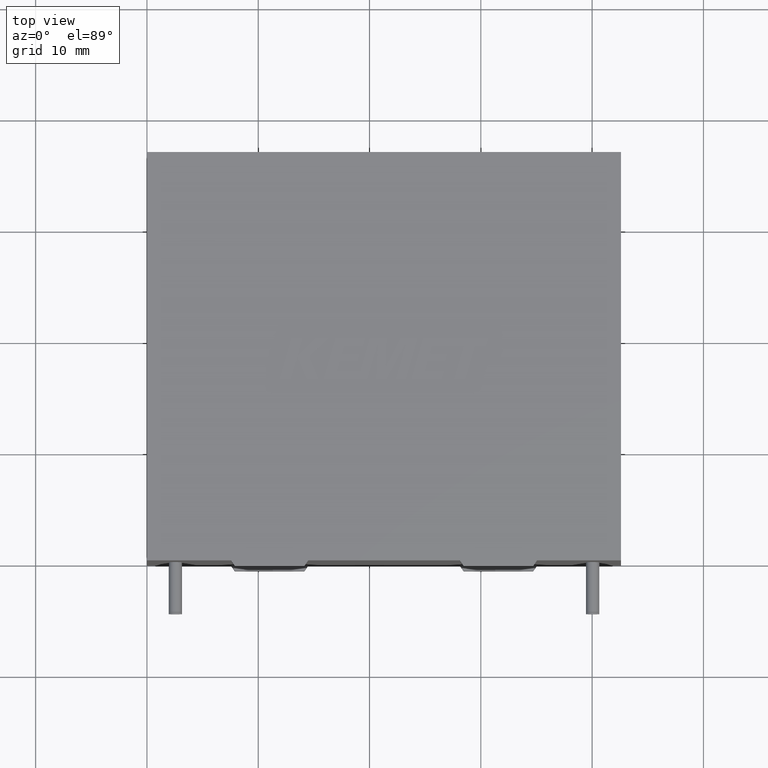
[diagram: clean part render]
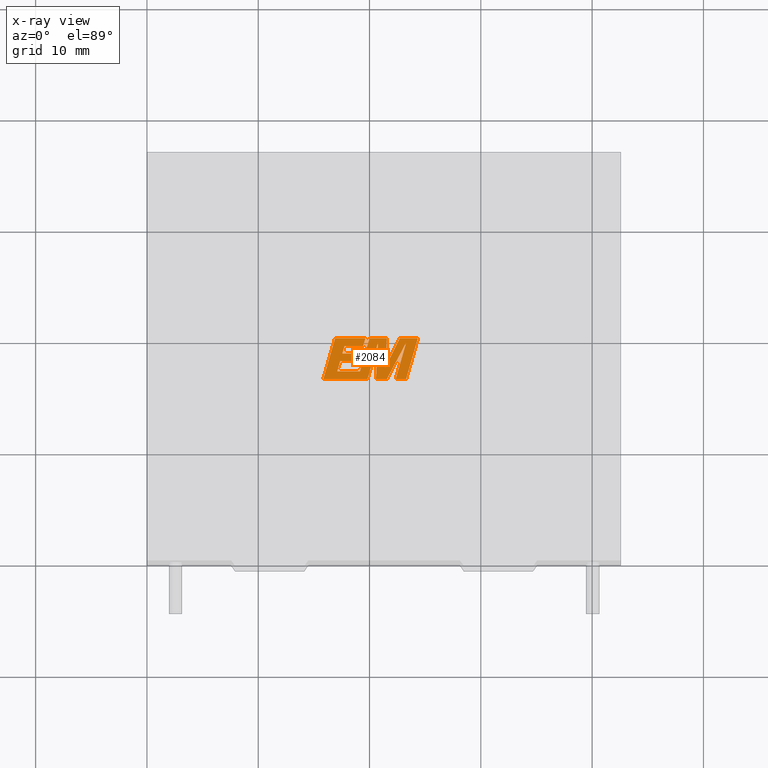
[diagram: x-ray — body ghosted, one internal face saturated and labeled with its STEP entity id]
A machine part, top view, then the same camera in x-ray: the body is ghosted and one INTERNAL B-rep face — a face not visible from any outside direction — is saturated and labeled: STEP entity #2084.
In plain terms, the highlighted planar face has unit normal (0, 0, -1).
Its self-contained STEP definition (entity closure, byte-faithful):
#7 = ORIENTED_EDGE ( 'NONE', *, *, #1679, .F. ) ;
#8 = VECTOR ( 'NONE', #347, 1000.000000000000200 ) ;
#43 = VECTOR ( 'NONE', #2289, 1000.000000000000000 ) ;
#48 = VERTEX_POINT ( 'NONE', #169 ) ;
#83 = VECTOR ( 'NONE', #2873, 1000.000000000000100 ) ;
#117 = LINE ( 'NONE', #2500, #1298 ) ;
#130 = EDGE_CURVE ( 'NONE', #1488, #1294, #1864, .T. ) ;
#162 = LINE ( 'NONE', #2827, #2684 ) ;
#169 = CARTESIAN_POINT ( 'NONE',  ( 19.99668704401929300, 19.96864435772087300, 28.39999999999999900 ) ) ;
#176 = EDGE_CURVE ( 'NONE', #2490, #2208, #1978, .T. ) ;
#217 = ORIENTED_EDGE ( 'NONE', *, *, #3160, .F. ) ;
#275 = CARTESIAN_POINT ( 'NONE',  ( 21.42351629502518400, 17.33744800757221700, 28.39999999999999900 ) ) ;
#277 = CARTESIAN_POINT ( 'NONE',  ( 16.90843675577583100, 19.96864435772087300, 28.39999999999999900 ) ) ;
#291 = DIRECTION ( 'NONE',  ( 0.0000000000000000000, 0.0000000000000000000, -1.000000000000000000 ) ) ;
#301 = CARTESIAN_POINT ( 'NONE',  ( 18.93918044897039700, 17.90169557702803300, 28.39999999999999900 ) ) ;
#321 = DIRECTION ( 'NONE',  ( -0.2762517575166419400, -0.9610853065513832400, 0.0000000000000000000 ) ) ;
#342 = EDGE_CURVE ( 'NONE', #2457, #915, #162, .T. ) ;
#347 = DIRECTION ( 'NONE',  ( -0.2760118818968562100, -0.9611542233438689100, 0.0000000000000000000 ) ) ;
#358 = LINE ( 'NONE', #652, #2309 ) ;
#370 = VERTEX_POINT ( 'NONE', #1778 ) ;
#408 = CARTESIAN_POINT ( 'NONE',  ( 18.93918044897039700, 17.90169557702803300, 28.39999999999999900 ) ) ;
#416 = VERTEX_POINT ( 'NONE', #277 ) ;
#423 = CARTESIAN_POINT ( 'NONE',  ( 17.55286043641822500, 18.58255951585596900, 28.39999999999999900 ) ) ;
#444 = ORIENTED_EDGE ( 'NONE', *, *, #506, .F. ) ;
#446 = ORIENTED_EDGE ( 'NONE', *, *, #1894, .F. ) ;
#456 = ORIENTED_EDGE ( 'NONE', *, *, #1695, .F. ) ;
#493 = DIRECTION ( 'NONE',  ( 1.000000000000000000, 0.0000000000000000000, 0.0000000000000000000 ) ) ;
#502 = VERTEX_POINT ( 'NONE', #582 ) ;
#506 = EDGE_CURVE ( 'NONE', #502, #2266, #1732, .T. ) ;
#509 = VECTOR ( 'NONE', #493, 1000.000000000000000 ) ;
#520 = VERTEX_POINT ( 'NONE', #2094 ) ;
#549 = CARTESIAN_POINT ( 'NONE',  ( 22.72850358042765600, 19.96864435772087300, 28.39999999999999900 ) ) ;
#552 = LINE ( 'NONE', #618, #1734 ) ;
#554 = CARTESIAN_POINT ( 'NONE',  ( 22.34904344926998800, 16.28562499999988600, 28.39999999999999900 ) ) ;
#557 = VERTEX_POINT ( 'NONE', #1127 ) ;
#566 = ORIENTED_EDGE ( 'NONE', *, *, #1502, .F. ) ;
#567 = LINE ( 'NONE', #2910, #8 ) ;
#582 = CARTESIAN_POINT ( 'NONE',  ( 17.35860944736875700, 17.90169557702803300, 28.39999999999999900 ) ) ;
#601 = ORIENTED_EDGE ( 'NONE', *, *, #1486, .F. ) ;
#618 = CARTESIAN_POINT ( 'NONE',  ( 17.55286043641822500, 18.58255951585596900, 28.39999999999999900 ) ) ;
#641 = LINE ( 'NONE', #2358, #1117 ) ;
#652 = CARTESIAN_POINT ( 'NONE',  ( 24.34385082149052700, 19.96864435772087300, 28.39999999999999900 ) ) ;
#654 = DIRECTION ( 'NONE',  ( -1.000000000000000000, 0.0000000000000000000, 0.0000000000000000000 ) ) ;
#699 = CARTESIAN_POINT ( 'NONE',  ( 16.90843675577583100, 19.96864435772087300, 28.39999999999999900 ) ) ;
#715 = VERTEX_POINT ( 'NONE', #1687 ) ;
#737 = ORIENTED_EDGE ( 'NONE', *, *, #2270, .F. ) ;
#741 = EDGE_CURVE ( 'NONE', #915, #48, #117, .T. ) ;
#773 = VECTOR ( 'NONE', #2916, 1000.000000000000000 ) ;
#827 = CARTESIAN_POINT ( 'NONE',  ( 19.99668704401929300, 19.96864435772087300, 28.39999999999999900 ) ) ;
#853 = VECTOR ( 'NONE', #2501, 1000.000000000000200 ) ;
#880 = CARTESIAN_POINT ( 'NONE',  ( 19.13945628708689700, 16.98632166693396100, 28.39999999999999900 ) ) ;
#915 = VERTEX_POINT ( 'NONE', #2854 ) ;
#919 = VECTOR ( 'NONE', #2352, 999.9999999999998900 ) ;
#930 = DIRECTION ( 'NONE',  ( -1.000000000000000000, 0.0000000000000000000, 0.0000000000000000000 ) ) ;
#974 = VECTOR ( 'NONE', #1861, 1000.000000000000000 ) ;
#1018 = CARTESIAN_POINT ( 'NONE',  ( 19.43021684743647300, 19.26760053406248800, 28.39999999999999900 ) ) ;
#1026 = VECTOR ( 'NONE', #2698, 1000.000000000000000 ) ;
#1036 = EDGE_CURVE ( 'NONE', #1294, #2490, #567, .T. ) ;
#1058 = CARTESIAN_POINT ( 'NONE',  ( 22.72850358042765600, 19.96864435772087300, 28.39999999999999900 ) ) ;
#1080 = EDGE_CURVE ( 'NONE', #715, #2866, #1359, .T. ) ;
#1091 = CARTESIAN_POINT ( 'NONE',  ( 20.75782257504268500, 19.56452032672960000, 28.39999999999999900 ) ) ;
#1113 = LINE ( 'NONE', #699, #43 ) ;
#1115 = CARTESIAN_POINT ( 'NONE',  ( -0.2046702566905634300, 0.4081393718311475700, 28.39999999999999100 ) ) ;
#1117 = VECTOR ( 'NONE', #3124, 1000.000000000000200 ) ;
#1122 = VERTEX_POINT ( 'NONE', #2931 ) ;
#1127 = CARTESIAN_POINT ( 'NONE',  ( 20.57403108235148500, 16.28562499999988200, 28.39999999999999900 ) ) ;
#1131 = LINE ( 'NONE', #2132, #773 ) ;
#1177 = CARTESIAN_POINT ( 'NONE',  ( 23.28495559953109500, 16.28562499999988600, 28.39999999999999900 ) ) ;
#1193 = ORIENTED_EDGE ( 'NONE', *, *, #3316, .F. ) ;
#1213 = CARTESIAN_POINT ( 'NONE',  ( 21.55589110578521400, 16.28562499999988200, 28.39999999999999900 ) ) ;
#1241 = DIRECTION ( 'NONE',  ( 0.2740217765954065500, 0.9617234872620595800, 0.0000000000000000000 ) ) ;
#1248 = CARTESIAN_POINT ( 'NONE',  ( 24.34385082149052700, 19.96864435772087300, 28.39999999999999900 ) ) ;
#1261 = CARTESIAN_POINT ( 'NONE',  ( 17.09779395475023000, 16.98632166693396100, 28.39999999999999900 ) ) ;
#1290 = ORIENTED_EDGE ( 'NONE', *, *, #1080, .F. ) ;
#1294 = VERTEX_POINT ( 'NONE', #2750 ) ;
#1298 = VECTOR ( 'NONE', #930, 1000.000000000000000 ) ;
#1357 = ORIENTED_EDGE ( 'NONE', *, *, #3112, .F. ) ;
#1359 = LINE ( 'NONE', #2180, #2493 ) ;
#1368 = CARTESIAN_POINT ( 'NONE',  ( 17.35860944736875700, 17.90169557702803300, 28.39999999999999900 ) ) ;
#1369 = CARTESIAN_POINT ( 'NONE',  ( 19.16078962521594800, 16.28562499999988200, 28.39999999999999900 ) ) ;
#1388 = CARTESIAN_POINT ( 'NONE',  ( 20.75782257504268500, 19.56452032672960000, 28.39999999999999900 ) ) ;
#1424 = LINE ( 'NONE', #2339, #2517 ) ;
#1470 = VECTOR ( 'NONE', #2784, 1000.000000000000000 ) ;
#1482 = VECTOR ( 'NONE', #2970, 1000.000000000000200 ) ;
#1486 = EDGE_CURVE ( 'NONE', #2163, #2846, #2967, .T. ) ;
#1488 = VERTEX_POINT ( 'NONE', #2021 ) ;
#1502 = EDGE_CURVE ( 'NONE', #2208, #2907, #641, .T. ) ;
#1515 = ORIENTED_EDGE ( 'NONE', *, *, #130, .F. ) ;
#1536 = CARTESIAN_POINT ( 'NONE',  ( 19.13945628708689700, 16.98632166693396100, 28.39999999999999900 ) ) ;
#1538 = PLANE ( 'NONE',  #2056 ) ;
#1588 = LINE ( 'NONE', #1388, #2107 ) ;
#1607 = VERTEX_POINT ( 'NONE', #549 ) ;
#1639 = ORIENTED_EDGE ( 'NONE', *, *, #2134, .F. ) ;
#1644 = LINE ( 'NONE', #1261, #3184 ) ;
#1679 = EDGE_CURVE ( 'NONE', #370, #2977, #3252, .T. ) ;
#1687 = CARTESIAN_POINT ( 'NONE',  ( 19.13365541010438900, 18.58255951585596900, 28.39999999999999900 ) ) ;
#1695 = EDGE_CURVE ( 'NONE', #2907, #1607, #358, .T. ) ;
#1732 = LINE ( 'NONE', #1368, #974 ) ;
#1734 = VECTOR ( 'NONE', #3246, 1000.000000000000200 ) ;
#1737 = LINE ( 'NONE', #2594, #83 ) ;
#1741 = ORIENTED_EDGE ( 'NONE', *, *, #342, .F. ) ;
#1755 = VERTEX_POINT ( 'NONE', #3319 ) ;
#1761 = LINE ( 'NONE', #827, #2206 ) ;
#1778 = CARTESIAN_POINT ( 'NONE',  ( 17.75219559178977500, 19.26760053406248800, 28.39999999999999900 ) ) ;
#1806 = ORIENTED_EDGE ( 'NONE', *, *, #176, .F. ) ;
#1861 = DIRECTION ( 'NONE',  ( 1.000000000000000000, 0.0000000000000000000, 0.0000000000000000000 ) ) ;
#1864 = LINE ( 'NONE', #1213, #2760 ) ;
#1877 = DIRECTION ( 'NONE',  ( 1.000000000000000000, 0.0000000000000000000, 0.0000000000000000000 ) ) ;
#1894 = EDGE_CURVE ( 'NONE', #48, #2163, #1761, .T. ) ;
#1978 = LINE ( 'NONE', #2259, #509 ) ;
#2021 = CARTESIAN_POINT ( 'NONE',  ( 21.55589110578521400, 16.28562499999988200, 28.39999999999999900 ) ) ;
#2056 = AXIS2_PLACEMENT_3D ( 'NONE', #1115, #291, #2320 ) ;
#2084 = ADVANCED_FACE ( 'NONE', ( #2949 ), #1538, .T. ) ;
#2094 = CARTESIAN_POINT ( 'NONE',  ( 19.81635591708048900, 16.28562499999988200, 28.39999999999999900 ) ) ;
#2107 = VECTOR ( 'NONE', #3200, 1000.000000000000100 ) ;
#2111 = ORIENTED_EDGE ( 'NONE', *, *, #2301, .F. ) ;
#2132 = CARTESIAN_POINT ( 'NONE',  ( 19.62932803072369500, 19.96864435772087300, 28.39999999999999900 ) ) ;
#2134 = EDGE_CURVE ( 'NONE', #1122, #416, #1131, .T. ) ;
#2151 = EDGE_CURVE ( 'NONE', #1607, #2457, #2537, .T. ) ;
#2163 = VERTEX_POINT ( 'NONE', #880 ) ;
#2180 = CARTESIAN_POINT ( 'NONE',  ( 19.13365541010438900, 18.58255951585596900, 28.39999999999999900 ) ) ;
#2206 = VECTOR ( 'NONE', #321, 1000.000000000000200 ) ;
#2208 = VERTEX_POINT ( 'NONE', #1177 ) ;
#2231 = CARTESIAN_POINT ( 'NONE',  ( 17.09779395475023000, 16.98632166693396100, 28.39999999999999900 ) ) ;
#2251 = ORIENTED_EDGE ( 'NONE', *, *, #3240, .F. ) ;
#2259 = CARTESIAN_POINT ( 'NONE',  ( 22.34904344926998800, 16.28562499999988600, 28.39999999999999900 ) ) ;
#2266 = VERTEX_POINT ( 'NONE', #408 ) ;
#2270 = EDGE_CURVE ( 'NONE', #2977, #1122, #2329, .T. ) ;
#2289 = DIRECTION ( 'NONE',  ( -0.2765379750249960000, -0.9610029908221278100, 0.0000000000000000000 ) ) ;
#2301 = EDGE_CURVE ( 'NONE', #2846, #502, #1644, .T. ) ;
#2309 = VECTOR ( 'NONE', #2948, 1000.000000000000000 ) ;
#2320 = DIRECTION ( 'NONE',  ( -1.000000000000000000, 0.0000000000000000000, 0.0000000000000000000 ) ) ;
#2329 = LINE ( 'NONE', #3291, #853 ) ;
#2339 = CARTESIAN_POINT ( 'NONE',  ( 20.57403108235148500, 16.28562499999988200, 28.39999999999999900 ) ) ;
#2352 = DIRECTION ( 'NONE',  ( 0.2746459304916927800, 0.9615454294334472300, 0.0000000000000000000 ) ) ;
#2358 = CARTESIAN_POINT ( 'NONE',  ( 23.28495559953109500, 16.28562499999988600, 28.39999999999999900 ) ) ;
#2433 = CARTESIAN_POINT ( 'NONE',  ( 17.75219559178977500, 19.26760053406248800, 28.39999999999999900 ) ) ;
#2440 = EDGE_CURVE ( 'NONE', #2266, #715, #2777, .T. ) ;
#2457 = VERTEX_POINT ( 'NONE', #275 ) ;
#2490 = VERTEX_POINT ( 'NONE', #554 ) ;
#2493 = VECTOR ( 'NONE', #654, 1000.000000000000000 ) ;
#2500 = CARTESIAN_POINT ( 'NONE',  ( 21.56515468792595400, 19.96864435772087300, 28.39999999999999900 ) ) ;
#2501 = DIRECTION ( 'NONE',  ( 0.2732148821746366300, 0.9619530280415459200, 0.0000000000000000000 ) ) ;
#2517 = VECTOR ( 'NONE', #3114, 1000.000000000000000 ) ;
#2533 = VERTEX_POINT ( 'NONE', #1091 ) ;
#2534 = ORIENTED_EDGE ( 'NONE', *, *, #2151, .F. ) ;
#2537 = LINE ( 'NONE', #1058, #1482 ) ;
#2556 = LINE ( 'NONE', #1369, #3043 ) ;
#2594 = CARTESIAN_POINT ( 'NONE',  ( 19.81635591708048900, 16.28562499999988200, 28.39999999999999900 ) ) ;
#2615 = ORIENTED_EDGE ( 'NONE', *, *, #2440, .F. ) ;
#2684 = VECTOR ( 'NONE', #3099, 1000.000000000000100 ) ;
#2694 = ORIENTED_EDGE ( 'NONE', *, *, #2876, .F. ) ;
#2698 = DIRECTION ( 'NONE',  ( 1.000000000000000000, 0.0000000000000000000, 0.0000000000000000000 ) ) ;
#2740 = EDGE_LOOP ( 'NONE', ( #456, #566, #1806, #2943, #1515, #1357, #2251, #3102, #217, #2694, #1639, #737, #7, #1193, #1290, #2615, #444, #2111, #601, #446, #3016, #1741, #2534 ) ) ;
#2750 = CARTESIAN_POINT ( 'NONE',  ( 23.29516872659226200, 19.58031035869222700, 28.39999999999999900 ) ) ;
#2760 = VECTOR ( 'NONE', #2793, 1000.000000000000100 ) ;
#2777 = LINE ( 'NONE', #301, #919 ) ;
#2784 = DIRECTION ( 'NONE',  ( -1.000000000000000000, 0.0000000000000000000, 0.0000000000000000000 ) ) ;
#2793 = DIRECTION ( 'NONE',  ( 0.4668459304955213700, 0.8843386665637610300, 0.0000000000000000000 ) ) ;
#2827 = CARTESIAN_POINT ( 'NONE',  ( 21.42351629502518400, 17.33744800757221700, 28.39999999999999900 ) ) ;
#2846 = VERTEX_POINT ( 'NONE', #2231 ) ;
#2854 = CARTESIAN_POINT ( 'NONE',  ( 21.56515468792595400, 19.96864435772087300, 28.39999999999999900 ) ) ;
#2866 = VERTEX_POINT ( 'NONE', #423 ) ;
#2873 = DIRECTION ( 'NONE',  ( 0.2759782365590797700, 0.9611638845408937400, 0.0000000000000000000 ) ) ;
#2876 = EDGE_CURVE ( 'NONE', #416, #1755, #1113, .T. ) ;
#2907 = VERTEX_POINT ( 'NONE', #1248 ) ;
#2910 = CARTESIAN_POINT ( 'NONE',  ( 23.29516872659226200, 19.58031035869222700, 28.39999999999999900 ) ) ;
#2916 = DIRECTION ( 'NONE',  ( -1.000000000000000000, 0.0000000000000000000, 0.0000000000000000000 ) ) ;
#2931 = CARTESIAN_POINT ( 'NONE',  ( 19.62932803072369500, 19.96864435772087300, 28.39999999999999900 ) ) ;
#2943 = ORIENTED_EDGE ( 'NONE', *, *, #1036, .F. ) ;
#2948 = DIRECTION ( 'NONE',  ( -1.000000000000000000, 0.0000000000000000000, 0.0000000000000000000 ) ) ;
#2949 = FACE_OUTER_BOUND ( 'NONE', #2740, .T. ) ;
#2967 = LINE ( 'NONE', #1536, #1470 ) ;
#2970 = DIRECTION ( 'NONE',  ( -0.4443210308329544900, -0.8958676361826788400, 0.0000000000000000000 ) ) ;
#2977 = VERTEX_POINT ( 'NONE', #1018 ) ;
#3016 = ORIENTED_EDGE ( 'NONE', *, *, #741, .F. ) ;
#3043 = VECTOR ( 'NONE', #1877, 1000.000000000000000 ) ;
#3099 = DIRECTION ( 'NONE',  ( 0.05375259206908725900, 0.9985542843760945000, 0.0000000000000000000 ) ) ;
#3102 = ORIENTED_EDGE ( 'NONE', *, *, #3137, .F. ) ;
#3112 = EDGE_CURVE ( 'NONE', #557, #1488, #1424, .T. ) ;
#3114 = DIRECTION ( 'NONE',  ( 1.000000000000000000, 0.0000000000000000000, 0.0000000000000000000 ) ) ;
#3124 = DIRECTION ( 'NONE',  ( 0.2763139702539121300, 0.9610674221107070600, 0.0000000000000000000 ) ) ;
#3137 = EDGE_CURVE ( 'NONE', #520, #2533, #1737, .T. ) ;
#3160 = EDGE_CURVE ( 'NONE', #1755, #520, #2556, .T. ) ;
#3184 = VECTOR ( 'NONE', #1241, 1000.000000000000100 ) ;
#3200 = DIRECTION ( 'NONE',  ( -0.05596501978068269700, -0.9984327301130245800, 0.0000000000000000000 ) ) ;
#3240 = EDGE_CURVE ( 'NONE', #2533, #557, #1588, .T. ) ;
#3246 = DIRECTION ( 'NONE',  ( 0.2793947940878344600, 0.9601763114327578300, 0.0000000000000000000 ) ) ;
#3252 = LINE ( 'NONE', #2433, #1026 ) ;
#3291 = CARTESIAN_POINT ( 'NONE',  ( 19.43021684743647300, 19.26760053406248800, 28.39999999999999900 ) ) ;
#3316 = EDGE_CURVE ( 'NONE', #2866, #370, #552, .T. ) ;
#3319 = CARTESIAN_POINT ( 'NONE',  ( 15.84861204670732300, 16.28562499999988200, 28.39999999999999900 ) ) ;